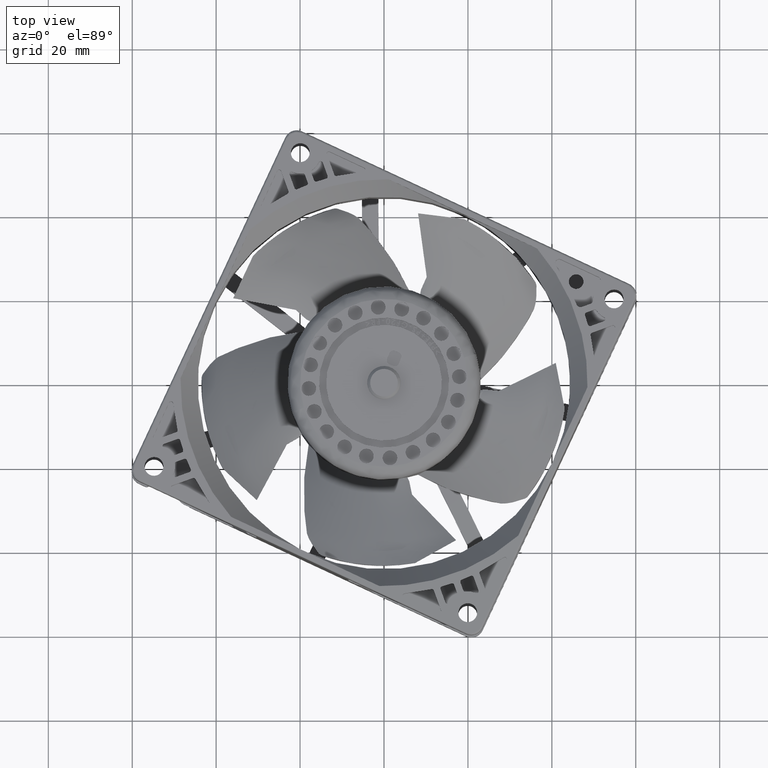
[diagram: clean part render]
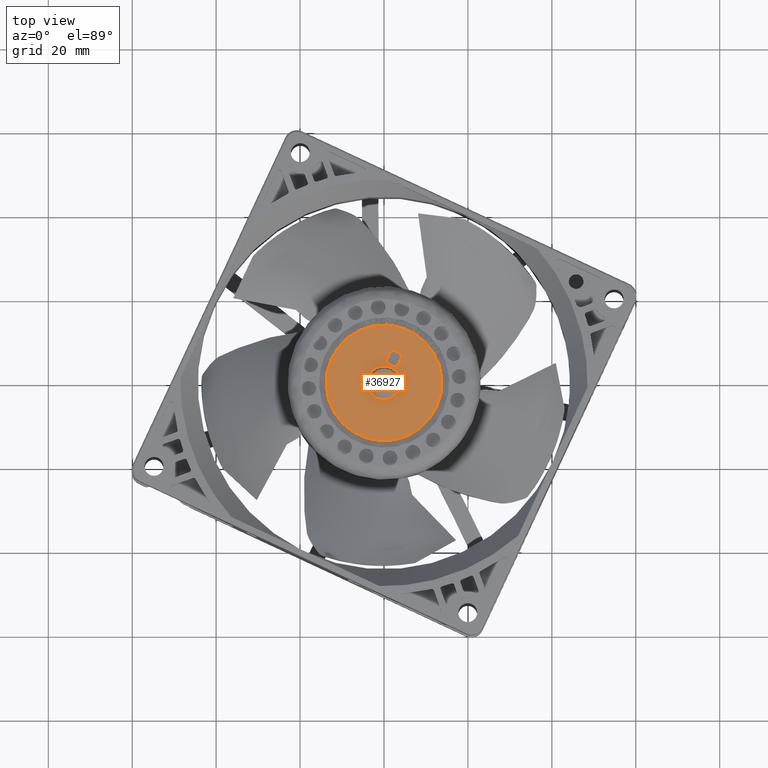
[diagram: same view with one face highlighted and labeled with its STEP entity id]
A machine part, top view. The second image highlights one B-rep face of the part: STEP entity #36927.
In plain terms, the highlighted planar face has unit normal (-0, -0, 1).
Its self-contained STEP definition (entity closure, byte-faithful):
#84 = EDGE_LOOP ( 'NONE', ( #61880, #19756 ) ) ;
#2057 = CIRCLE ( 'NONE', #52205, 3.999999999962256000 ) ;
#2338 = CARTESIAN_POINT ( 'NONE',  ( 3.152309631716000200, 4.534638241997999600, 0.0000000000000000000 ) ) ;
#2413 = ORIENTED_EDGE ( 'NONE', *, *, #2450, .F. ) ;
#2450 = EDGE_CURVE ( 'NONE', #63158, #28715, #53890, .T. ) ;
#3763 = FACE_BOUND ( 'NONE', #48968, .T. ) ;
#4900 = CIRCLE ( 'NONE', #10755, 3.999999999962256000 ) ;
#5450 = EDGE_CURVE ( 'NONE', #50721, #21189, #62358, .T. ) ;
#6741 = DIRECTION ( 'NONE',  ( 0.0000000000000000000, 0.0000000000000000000, -1.000000000000000000 ) ) ;
#6747 = CARTESIAN_POINT ( 'NONE',  ( 4.684398517953225000, 3.249063022623224700, 0.0000000000000000000 ) ) ;
#7412 = CARTESIAN_POINT ( 'NONE',  ( 0.0000000000000000000, 0.0000000000000000000, 5.684341886080801500E-011 ) ) ;
#7833 = CIRCLE ( 'NONE', #33605, 1.000000000000000000 ) ;
#8488 = VECTOR ( 'NONE', #57814, 1000.000000000000100 ) ;
#8591 = ORIENTED_EDGE ( 'NONE', *, *, #58354, .T. ) ;
#9199 = DIRECTION ( 'NONE',  ( 0.0000000000000000000, 0.0000000000000000000, -1.000000000000000000 ) ) ;
#9842 = CARTESIAN_POINT ( 'NONE',  ( 13.80000000000000100, 0.0000000000000000000, 0.0000000000000000000 ) ) ;
#9962 = ORIENTED_EDGE ( 'NONE', *, *, #13412, .F. ) ;
#10046 = CARTESIAN_POINT ( 'NONE',  ( 3.999999999962256000, 4.898587196543190500E-016, 5.684341886080801500E-011 ) ) ;
#10202 = CARTESIAN_POINT ( 'NONE',  ( -3.999999999962256000, 0.0000000000000000000, 5.684341886080801500E-011 ) ) ;
#10414 = ORIENTED_EDGE ( 'NONE', *, *, #20399, .T. ) ;
#10481 = DIRECTION ( 'NONE',  ( -1.000000000000000000, 0.0000000000000000000, 0.0000000000000000000 ) ) ;
#10755 = AXIS2_PLACEMENT_3D ( 'NONE', #54388, #9199, #13783 ) ;
#10842 = FACE_BOUND ( 'NONE', #84, .T. ) ;
#11379 = VERTEX_POINT ( 'NONE', #52821 ) ;
#11622 = LINE ( 'NONE', #31681, #42364 ) ;
#12422 = DIRECTION ( 'NONE',  ( 0.6427876096869562500, 0.7660444431186281800, 0.0000000000000000000 ) ) ;
#13136 = ORIENTED_EDGE ( 'NONE', *, *, #32302, .T. ) ;
#13412 = EDGE_CURVE ( 'NONE', #28715, #63158, #58780, .T. ) ;
#13783 = DIRECTION ( 'NONE',  ( -1.000000000000000000, 0.0000000000000000000, 0.0000000000000000000 ) ) ;
#13904 = CARTESIAN_POINT ( 'NONE',  ( 2.152309631716000200, 4.534638241997999600, 0.0000000000000000000 ) ) ;
#14741 = CARTESIAN_POINT ( 'NONE',  ( -13.80000000000000100, 1.690012582823347500E-015, 0.0000000000000000000 ) ) ;
#14856 = DIRECTION ( 'NONE',  ( 1.000000000000000000, 0.0000000000000000000, -0.0000000000000000000 ) ) ;
#15086 = VERTEX_POINT ( 'NONE', #10202 ) ;
#15182 = DIRECTION ( 'NONE',  ( -0.0000000000000000000, -0.0000000000000000000, -1.000000000000000000 ) ) ;
#15508 = AXIS2_PLACEMENT_3D ( 'NONE', #34306, #64568, #59084 ) ;
#16960 = EDGE_CURVE ( 'NONE', #27509, #62522, #18636, .T. ) ;
#17233 = DIRECTION ( 'NONE',  ( -1.000000000000000000, 0.0000000000000000000, 0.0000000000000000000 ) ) ;
#17917 = ORIENTED_EDGE ( 'NONE', *, *, #60593, .T. ) ;
#18137 = CIRCLE ( 'NONE', #58926, 1.000000000000000000 ) ;
#18636 = LINE ( 'NONE', #46994, #8488 ) ;
#18669 = AXIS2_PLACEMENT_3D ( 'NONE', #25348, #34862, #10481 ) ;
#18961 = EDGE_CURVE ( 'NONE', #15086, #48228, #2057, .T. ) ;
#19153 = CARTESIAN_POINT ( 'NONE',  ( 3.350446603127262600, 6.326492516362414200, 0.0000000000000000000 ) ) ;
#19744 = VERTEX_POINT ( 'NONE', #55132 ) ;
#19756 = ORIENTED_EDGE ( 'NONE', *, *, #49192, .T. ) ;
#20371 = CARTESIAN_POINT ( 'NONE',  ( 5.525323099051449900, 5.806961740108919300, 0.0000000000000000000 ) ) ;
#20399 = EDGE_CURVE ( 'NONE', #19744, #64919, #39751, .T. ) ;
#20533 = CARTESIAN_POINT ( 'NONE',  ( 2.386265188596864200, 5.177425851683828700, 0.0000000000000000000 ) ) ;
#21189 = VERTEX_POINT ( 'NONE', #19153 ) ;
#21367 = AXIS2_PLACEMENT_3D ( 'NONE', #56590, #48403, #17233 ) ;
#22703 = EDGE_CURVE ( 'NONE', #64919, #23095, #61746, .T. ) ;
#23095 = VERTEX_POINT ( 'NONE', #32932 ) ;
#23136 = VECTOR ( 'NONE', #32061, 1000.000000000000100 ) ;
#23727 = ORIENTED_EDGE ( 'NONE', *, *, #16960, .T. ) ;
#25056 = DIRECTION ( 'NONE',  ( 1.000000000000000000, 0.0000000000000000000, 0.0000000000000000000 ) ) ;
#25348 = CARTESIAN_POINT ( 'NONE',  ( 4.116491046245999800, 5.683704906675999700, 0.0000000000000000000 ) ) ;
#25499 = DIRECTION ( 'NONE',  ( -1.000000000000000000, 0.0000000000000000000, 0.0000000000000000000 ) ) ;
#26570 = AXIS2_PLACEMENT_3D ( 'NONE', #30375, #15182, #25056 ) ;
#27509 = VERTEX_POINT ( 'NONE', #36326 ) ;
#28715 = VERTEX_POINT ( 'NONE', #14741 ) ;
#30007 = VERTEX_POINT ( 'NONE', #13904 ) ;
#30108 = CIRCLE ( 'NONE', #18669, 1.000000000000000000 ) ;
#30375 = CARTESIAN_POINT ( 'NONE',  ( 0.0000000000000000000, 0.0000000000000000000, 0.0000000000000000000 ) ) ;
#31681 = CARTESIAN_POINT ( 'NONE',  ( 3.275566465152000000, 3.125806189188999900, 0.0000000000000000000 ) ) ;
#32061 = DIRECTION ( 'NONE',  ( -0.6427876096863134300, -0.7660444431191675300, 0.0000000000000000000 ) ) ;
#32205 = CARTESIAN_POINT ( 'NONE',  ( 2.386265188593999800, 5.177425851680999900, 0.0000000000000000000 ) ) ;
#32302 = EDGE_CURVE ( 'NONE', #30007, #50721, #18137, .T. ) ;
#32688 = DIRECTION ( 'NONE',  ( -1.000000000000000000, 0.0000000000000000000, 0.0000000000000000000 ) ) ;
#32932 = CARTESIAN_POINT ( 'NONE',  ( 3.275566465150897800, 3.125806189190166100, 0.0000000000000000000 ) ) ;
#33605 = AXIS2_PLACEMENT_3D ( 'NONE', #41007, #45674, #25499 ) ;
#34306 = CARTESIAN_POINT ( 'NONE',  ( 3.918354074834999900, 3.891850632311000300, 0.0000000000000000000 ) ) ;
#34862 = DIRECTION ( 'NONE',  ( 0.0000000000000000000, 0.0000000000000000000, -1.000000000000000000 ) ) ;
#34900 = DIRECTION ( 'NONE',  ( 0.0000000000000000000, 0.0000000000000000000, 1.000000000000000000 ) ) ;
#36326 = CARTESIAN_POINT ( 'NONE',  ( 4.759278655935379000, 6.449749349793431300, 0.0000000000000000000 ) ) ;
#36773 = DIRECTION ( 'NONE',  ( -0.7660444431185226000, 0.6427876096870821500, 0.0000000000000000000 ) ) ;
#36927 = ADVANCED_FACE ( 'NONE', ( #3763, #10842, #54238 ), #55056, .T. ) ;
#37135 = EDGE_CURVE ( 'NONE', #62522, #19744, #48671, .T. ) ;
#39751 = LINE ( 'NONE', #46927, #23136 ) ;
#40725 = ORIENTED_EDGE ( 'NONE', *, *, #48728, .T. ) ;
#41007 = CARTESIAN_POINT ( 'NONE',  ( 3.152309631716000200, 4.534638241997999600, 0.0000000000000000000 ) ) ;
#41442 = ORIENTED_EDGE ( 'NONE', *, *, #5450, .T. ) ;
#42364 = VECTOR ( 'NONE', #36773, 1000.000000000000100 ) ;
#44200 = DIRECTION ( 'NONE',  ( 1.000000000000000000, 0.0000000000000000000, 0.0000000000000000000 ) ) ;
#45060 = DIRECTION ( 'NONE',  ( -0.0000000000000000000, -0.0000000000000000000, -1.000000000000000000 ) ) ;
#45674 = DIRECTION ( 'NONE',  ( 0.0000000000000000000, 0.0000000000000000000, -1.000000000000000000 ) ) ;
#46927 = CARTESIAN_POINT ( 'NONE',  ( 5.648579932483000800, 4.398129687302001000, 0.0000000000000000000 ) ) ;
#46994 = CARTESIAN_POINT ( 'NONE',  ( 4.759278655936999900, 6.449749349792000400, 0.0000000000000000000 ) ) ;
#48228 = VERTEX_POINT ( 'NONE', #10046 ) ;
#48403 = DIRECTION ( 'NONE',  ( 0.0000000000000000000, 0.0000000000000000000, -1.000000000000000000 ) ) ;
#48499 = AXIS2_PLACEMENT_3D ( 'NONE', #64666, #45060, #44200 ) ;
#48671 = CIRCLE ( 'NONE', #21367, 1.000000000000000000 ) ;
#48728 = EDGE_CURVE ( 'NONE', #21189, #27509, #30108, .T. ) ;
#48968 = EDGE_LOOP ( 'NONE', ( #8591, #13136, #41442, #40725, #23727, #55288, #10414, #51990, #17917 ) ) ;
#49192 = EDGE_CURVE ( 'NONE', #48228, #15086, #4900, .T. ) ;
#50721 = VERTEX_POINT ( 'NONE', #20533 ) ;
#51990 = ORIENTED_EDGE ( 'NONE', *, *, #22703, .T. ) ;
#52205 = AXIS2_PLACEMENT_3D ( 'NONE', #7412, #6741, #32688 ) ;
#52821 = CARTESIAN_POINT ( 'NONE',  ( 2.509522022029165600, 3.768593798879484400, 0.0000000000000000000 ) ) ;
#53890 = CIRCLE ( 'NONE', #48499, 13.80000000000000100 ) ;
#54238 = FACE_OUTER_BOUND ( 'NONE', #56313, .T. ) ;
#54388 = CARTESIAN_POINT ( 'NONE',  ( 0.0000000000000000000, 0.0000000000000000000, 5.684341886080801500E-011 ) ) ;
#55056 = PLANE ( 'NONE',  #64154 ) ;
#55132 = CARTESIAN_POINT ( 'NONE',  ( 5.648579932485260400, 4.398129687304696700, 0.0000000000000000000 ) ) ;
#55288 = ORIENTED_EDGE ( 'NONE', *, *, #37135, .T. ) ;
#56313 = EDGE_LOOP ( 'NONE', ( #2413, #9962 ) ) ;
#56590 = CARTESIAN_POINT ( 'NONE',  ( 4.882535489364999900, 5.040917296990000000, 0.0000000000000000000 ) ) ;
#57814 = DIRECTION ( 'NONE',  ( 0.7660444431187435300, -0.6427876096868187000, 0.0000000000000000000 ) ) ;
#58354 = EDGE_CURVE ( 'NONE', #11379, #30007, #7833, .T. ) ;
#58780 = CIRCLE ( 'NONE', #26570, 13.80000000000000100 ) ;
#58926 = AXIS2_PLACEMENT_3D ( 'NONE', #2338, #62733, #63378 ) ;
#59084 = DIRECTION ( 'NONE',  ( -1.000000000000000000, 0.0000000000000000000, 0.0000000000000000000 ) ) ;
#60593 = EDGE_CURVE ( 'NONE', #23095, #11379, #11622, .T. ) ;
#61746 = CIRCLE ( 'NONE', #15508, 1.000000000000000000 ) ;
#61880 = ORIENTED_EDGE ( 'NONE', *, *, #18961, .T. ) ;
#62358 = LINE ( 'NONE', #32205, #63129 ) ;
#62522 = VERTEX_POINT ( 'NONE', #20371 ) ;
#62733 = DIRECTION ( 'NONE',  ( 0.0000000000000000000, 0.0000000000000000000, -1.000000000000000000 ) ) ;
#63129 = VECTOR ( 'NONE', #12422, 1000.000000000000000 ) ;
#63158 = VERTEX_POINT ( 'NONE', #9842 ) ;
#63378 = DIRECTION ( 'NONE',  ( -1.000000000000000000, 0.0000000000000000000, 0.0000000000000000000 ) ) ;
#64154 = AXIS2_PLACEMENT_3D ( 'NONE', #65174, #34900, #14856 ) ;
#64568 = DIRECTION ( 'NONE',  ( 0.0000000000000000000, 0.0000000000000000000, -1.000000000000000000 ) ) ;
#64666 = CARTESIAN_POINT ( 'NONE',  ( 0.0000000000000000000, 0.0000000000000000000, 0.0000000000000000000 ) ) ;
#64919 = VERTEX_POINT ( 'NONE', #6747 ) ;
#65174 = CARTESIAN_POINT ( 'NONE',  ( 0.0000000000000000000, 0.0000000000000000000, 0.0000000000000000000 ) ) ;